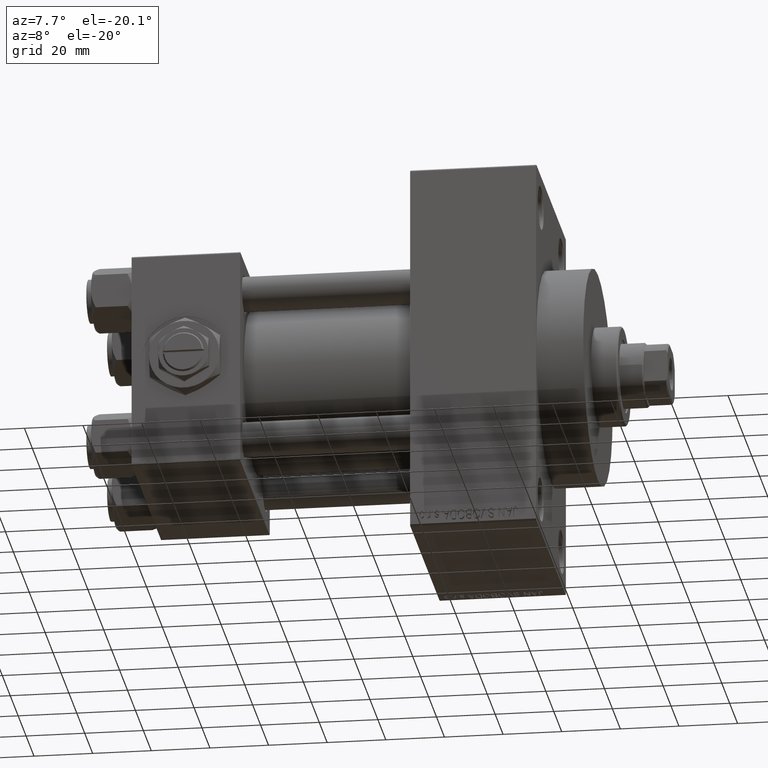
[diagram: clean part render]
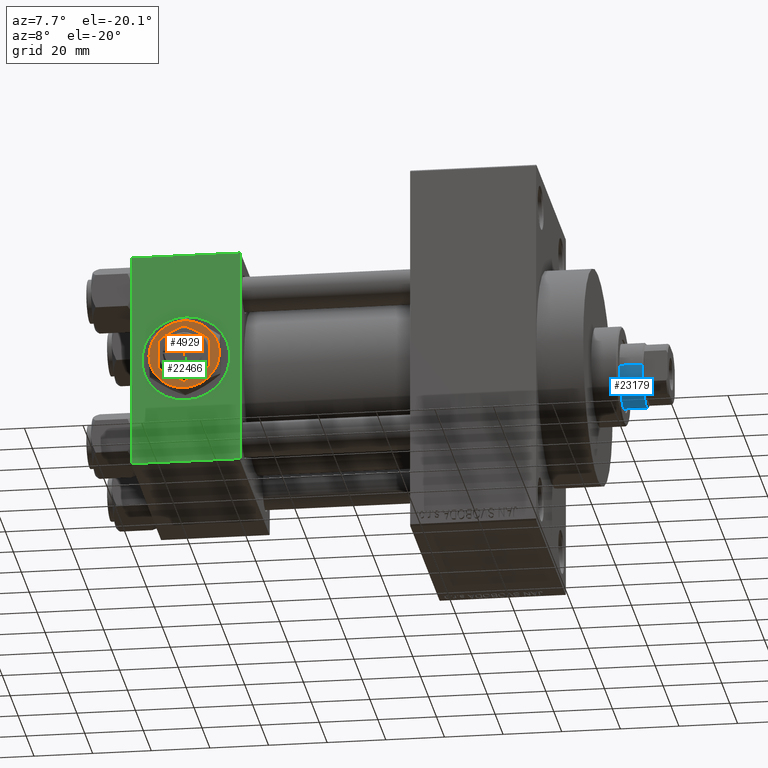
[diagram: same view with three faces highlighted in distinct colors, each labeled with its STEP entity id]
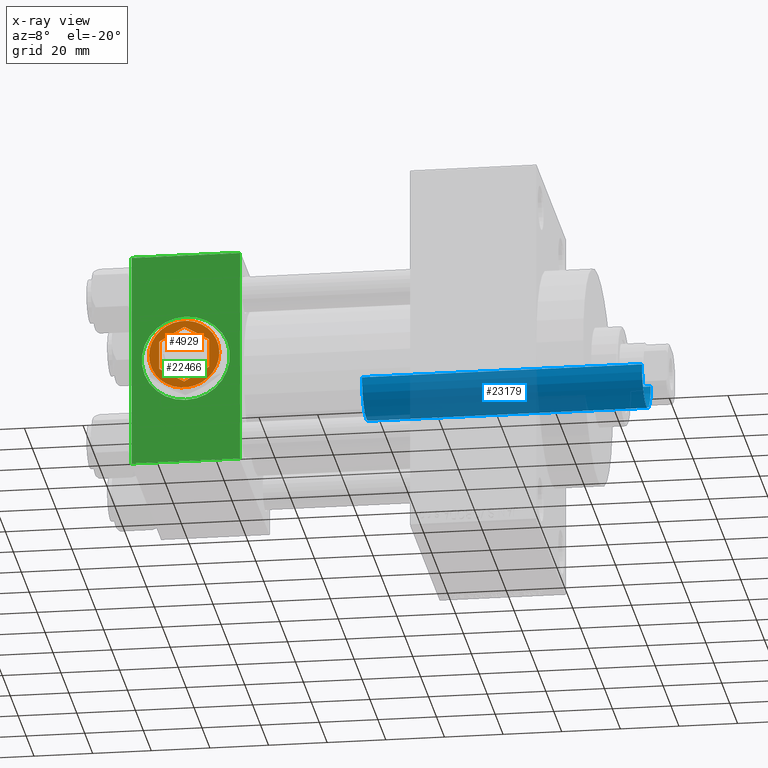
[diagram: x-ray of the same camera — body ghosted, the three highlighted faces saturated]
A machine part, auxiliary view with three faces highlighted in distinct colors.
The next image is the same camera in x-ray (body ghosted, the three faces saturated) — at least one of them is partly hidden behind the body in this view.
Their STEP definitions:

[orange] entity #4929 — the highlighted planar face has unit normal (-0, -1, 0).
#592 = CIRCLE ( 'NONE', #12340, 12.00000000000000178 ) ;
#650 = CARTESIAN_POINT ( 'NONE',  ( -2.644623992720612091E-15, -9.814954576223637872, 4.299999999999999822 ) ) ;
#1041 = LINE ( 'NONE', #1529, #28893 ) ;
#1529 = CARTESIAN_POINT ( 'NONE',  ( -8.500000000000000000, 4.907477288111818048, 4.299999999999999822 ) ) ;
#2143 = VERTEX_POINT ( 'NONE', #7909 ) ;
#2283 = EDGE_CURVE ( 'NONE', #15199, #18708, #44533, .T. ) ;
#2965 = CARTESIAN_POINT ( 'NONE',  ( 5.999999999999998224, -10.39230484541326760, 4.299999999999999822 ) ) ;
#3064 = EDGE_CURVE ( 'NONE', #14165, #29876, #19781, .T. ) ;
#3710 = VERTEX_POINT ( 'NONE', #28236 ) ;
#4540 = CARTESIAN_POINT ( 'NONE',  ( -8.500000000000000000, 4.907477288111818048, 4.299999999999999822 ) ) ;
#4929 = ADVANCED_FACE ( 'NONE', ( #11429, #43993 ), #47930, .T. ) ;
#5488 = CARTESIAN_POINT ( 'NONE',  ( -2.644623992720612091E-15, -9.814954576223637872, 4.299999999999999822 ) ) ;
#6131 = DIRECTION ( 'NONE',  ( 0.8660254037844385966, -0.5000000000000001110, 0.000000000000000000 ) ) ;
#6612 = LINE ( 'NONE', #13513, #21864 ) ;
#6850 = ORIENTED_EDGE ( 'NONE', *, *, #15534, .T. ) ;
#6882 = DIRECTION ( 'NONE',  ( -0.8660254037844387076, 0.4999999999999998890, 0.000000000000000000 ) ) ;
#7224 = DIRECTION ( 'NONE',  ( 1.000000000000000000, 0.000000000000000000, 0.000000000000000000 ) ) ;
#7826 = ORIENTED_EDGE ( 'NONE', *, *, #26304, .F. ) ;
#7909 = CARTESIAN_POINT ( 'NONE',  ( -6.000000000000000000, -10.39230484541326582, 4.299999999999999822 ) ) ;
#9521 = ORIENTED_EDGE ( 'NONE', *, *, #2283, .F. ) ;
#11186 = CARTESIAN_POINT ( 'NONE',  ( 0.000000000000000000, 0.000000000000000000, 4.299999999999999822 ) ) ;
#11429 = FACE_OUTER_BOUND ( 'NONE', #26776, .T. ) ;
#11453 = CARTESIAN_POINT ( 'NONE',  ( -8.500000000000000000, -4.907477288111819824, 4.299999999999999822 ) ) ;
#12229 = VERTEX_POINT ( 'NONE', #4540 ) ;
#12340 = AXIS2_PLACEMENT_3D ( 'NONE', #38483, #16583, #20029 ) ;
#12747 = AXIS2_PLACEMENT_3D ( 'NONE', #11186, #26182, #41200 ) ;
#13020 = ORIENTED_EDGE ( 'NONE', *, *, #27523, .F. ) ;
#13513 = CARTESIAN_POINT ( 'NONE',  ( -8.500000000000000000, -4.907477288111819824, 4.299999999999999822 ) ) ;
#13576 = CARTESIAN_POINT ( 'NONE',  ( 11.99999999999999645, 3.004629197474318063E-15, 4.299999999999999822 ) ) ;
#13934 = DIRECTION ( 'NONE',  ( 1.000000000000000000, 0.000000000000000000, 0.000000000000000000 ) ) ;
#14067 = LINE ( 'NONE', #29060, #17433 ) ;
#14138 = ORIENTED_EDGE ( 'NONE', *, *, #36089, .F. ) ;
#14165 = VERTEX_POINT ( 'NONE', #30373 ) ;
#15199 = VERTEX_POINT ( 'NONE', #30437 ) ;
#15534 = EDGE_CURVE ( 'NONE', #2143, #22056, #39701, .T. ) ;
#15749 = EDGE_CURVE ( 'NONE', #3710, #2143, #26348, .T. ) ;
#15953 = VERTEX_POINT ( 'NONE', #13576 ) ;
#16583 = DIRECTION ( 'NONE',  ( 0.000000000000000000, 0.000000000000000000, 1.000000000000000000 ) ) ;
#17075 = DIRECTION ( 'NONE',  ( 0.000000000000000000, 0.000000000000000000, 1.000000000000000000 ) ) ;
#17416 = ORIENTED_EDGE ( 'NONE', *, *, #3064, .T. ) ;
#17433 = VECTOR ( 'NONE', #44093, 1000.000000000000000 ) ;
#17789 = CARTESIAN_POINT ( 'NONE',  ( -6.000000000000001776, 10.39230484541326405, 4.299999999999999822 ) ) ;
#18708 = VERTEX_POINT ( 'NONE', #19151 ) ;
#19151 = CARTESIAN_POINT ( 'NONE',  ( 0.000000000000000000, 9.814954576223637872, 4.299999999999999822 ) ) ;
#19251 = DIRECTION ( 'NONE',  ( 1.000000000000000000, 0.000000000000000000, 0.000000000000000000 ) ) ;
#19288 = DIRECTION ( 'NONE',  ( 0.000000000000000000, 0.000000000000000000, 1.000000000000000000 ) ) ;
#19335 = DIRECTION ( 'NONE',  ( -0.8660254037844385966, -0.5000000000000000000, 0.000000000000000000 ) ) ;
#19517 = DIRECTION ( 'NONE',  ( 0.8660254037844388186, 0.4999999999999997224, 0.000000000000000000 ) ) ;
#19710 = ORIENTED_EDGE ( 'NONE', *, *, #15749, .T. ) ;
#19781 = CIRCLE ( 'NONE', #12747, 12.00000000000000178 ) ;
#19847 = CARTESIAN_POINT ( 'NONE',  ( 8.500000000000000000, -4.907477288111819824, 4.299999999999999822 ) ) ;
#20029 = DIRECTION ( 'NONE',  ( 1.000000000000000000, 0.000000000000000000, 0.000000000000000000 ) ) ;
#20388 = VERTEX_POINT ( 'NONE', #650 ) ;
#20639 = ORIENTED_EDGE ( 'NONE', *, *, #24630, .F. ) ;
#21864 = VECTOR ( 'NONE', #6131, 1000.000000000000114 ) ;
#22056 = VERTEX_POINT ( 'NONE', #2965 ) ;
#22406 = AXIS2_PLACEMENT_3D ( 'NONE', #37217, #48573, #19251 ) ;
#22789 = EDGE_CURVE ( 'NONE', #15953, #14165, #592, .T. ) ;
#24630 = EDGE_CURVE ( 'NONE', #18708, #12229, #30631, .T. ) ;
#25582 = AXIS2_PLACEMENT_3D ( 'NONE', #31339, #17075, #28390 ) ;
#26182 = DIRECTION ( 'NONE',  ( 0.000000000000000000, 0.000000000000000000, 1.000000000000000000 ) ) ;
#26304 = EDGE_CURVE ( 'NONE', #12229, #33706, #1041, .T. ) ;
#26348 = CIRCLE ( 'NONE', #22406, 12.00000000000000178 ) ;
#26593 = ORIENTED_EDGE ( 'NONE', *, *, #42773, .F. ) ;
#26776 = EDGE_LOOP ( 'NONE', ( #41376, #46734, #17416, #33414, #19710, #6850 ) ) ;
#26893 = AXIS2_PLACEMENT_3D ( 'NONE', #32803, #47843, #7224 ) ;
#26913 = LINE ( 'NONE', #5488, #43477 ) ;
#27523 = EDGE_CURVE ( 'NONE', #33706, #20388, #6612, .T. ) ;
#28236 = CARTESIAN_POINT ( 'NONE',  ( -12.00000000000000178, 0.000000000000000000, 4.299999999999999822 ) ) ;
#28390 = DIRECTION ( 'NONE',  ( 1.000000000000000000, 0.000000000000000000, 0.000000000000000000 ) ) ;
#28788 = CARTESIAN_POINT ( 'NONE',  ( 8.499999999999996447, 4.907477288111821601, 4.299999999999999822 ) ) ;
#28893 = VECTOR ( 'NONE', #46073, 1000.000000000000000 ) ;
#28967 = DIRECTION ( 'NONE',  ( 1.000000000000000000, 0.000000000000000000, -0.000000000000000000 ) ) ;
#29060 = CARTESIAN_POINT ( 'NONE',  ( 8.500000000000000000, -4.907477288111819824, 4.299999999999999822 ) ) ;
#29876 = VERTEX_POINT ( 'NONE', #17789 ) ;
#30373 = CARTESIAN_POINT ( 'NONE',  ( 6.000000000000000888, 10.39230484541326582, 4.299999999999999822 ) ) ;
#30437 = CARTESIAN_POINT ( 'NONE',  ( 8.499999999999996447, 4.907477288111821601, 4.299999999999999822 ) ) ;
#30631 = LINE ( 'NONE', #38750, #48693 ) ;
#30834 = AXIS2_PLACEMENT_3D ( 'NONE', #47891, #37029, #13934 ) ;
#31339 = CARTESIAN_POINT ( 'NONE',  ( 0.000000000000000000, 0.000000000000000000, 4.299999999999999822 ) ) ;
#32305 = AXIS2_PLACEMENT_3D ( 'NONE', #34047, #19288, #28967 ) ;
#32803 = CARTESIAN_POINT ( 'NONE',  ( 0.000000000000000000, 0.000000000000000000, 4.299999999999999822 ) ) ;
#33414 = ORIENTED_EDGE ( 'NONE', *, *, #41249, .T. ) ;
#33706 = VERTEX_POINT ( 'NONE', #11453 ) ;
#34047 = CARTESIAN_POINT ( 'NONE',  ( 0.000000000000000000, 0.000000000000000000, 4.299999999999999822 ) ) ;
#34670 = VECTOR ( 'NONE', #6882, 1000.000000000000114 ) ;
#35561 = CIRCLE ( 'NONE', #30834, 12.00000000000000178 ) ;
#35625 = EDGE_LOOP ( 'NONE', ( #20639, #9521, #14138, #26593, #13020, #7826 ) ) ;
#36089 = EDGE_CURVE ( 'NONE', #40907, #15199, #14067, .T. ) ;
#37029 = DIRECTION ( 'NONE',  ( 0.000000000000000000, 0.000000000000000000, 1.000000000000000000 ) ) ;
#37217 = CARTESIAN_POINT ( 'NONE',  ( 0.000000000000000000, 0.000000000000000000, 4.299999999999999822 ) ) ;
#37577 = EDGE_CURVE ( 'NONE', #22056, #15953, #41828, .T. ) ;
#38483 = CARTESIAN_POINT ( 'NONE',  ( 0.000000000000000000, 0.000000000000000000, 4.299999999999999822 ) ) ;
#38750 = CARTESIAN_POINT ( 'NONE',  ( 0.000000000000000000, 9.814954576223637872, 4.299999999999999822 ) ) ;
#39701 = CIRCLE ( 'NONE', #25582, 12.00000000000000178 ) ;
#40907 = VERTEX_POINT ( 'NONE', #19847 ) ;
#41200 = DIRECTION ( 'NONE',  ( 1.000000000000000000, 0.000000000000000000, 0.000000000000000000 ) ) ;
#41249 = EDGE_CURVE ( 'NONE', #29876, #3710, #35561, .T. ) ;
#41376 = ORIENTED_EDGE ( 'NONE', *, *, #37577, .T. ) ;
#41828 = CIRCLE ( 'NONE', #26893, 12.00000000000000178 ) ;
#42773 = EDGE_CURVE ( 'NONE', #20388, #40907, #26913, .T. ) ;
#43477 = VECTOR ( 'NONE', #19517, 1000.000000000000114 ) ;
#43993 = FACE_BOUND ( 'NONE', #35625, .T. ) ;
#44093 = DIRECTION ( 'NONE',  ( -3.534857879381550604E-16, 1.000000000000000000, 0.000000000000000000 ) ) ;
#44533 = LINE ( 'NONE', #28788, #34670 ) ;
#46073 = DIRECTION ( 'NONE',  ( 0.000000000000000000, -1.000000000000000000, 0.000000000000000000 ) ) ;
#46734 = ORIENTED_EDGE ( 'NONE', *, *, #22789, .T. ) ;
#47843 = DIRECTION ( 'NONE',  ( 0.000000000000000000, 0.000000000000000000, 1.000000000000000000 ) ) ;
#47891 = CARTESIAN_POINT ( 'NONE',  ( 0.000000000000000000, 0.000000000000000000, 4.299999999999999822 ) ) ;
#47930 = PLANE ( 'NONE',  #32305 ) ;
#48573 = DIRECTION ( 'NONE',  ( 0.000000000000000000, 0.000000000000000000, 1.000000000000000000 ) ) ;
#48693 = VECTOR ( 'NONE', #19335, 1000.000000000000227 ) ;

[blue] entity #23179 — the highlighted cylindrical surface (edge-blend (fillet) strip) has radius 11 mm, axis along (-1, 0, 0).
#714 = EDGE_CURVE ( 'NONE', #11410, #23056, #36266, .T. ) ;
#3478 = DIRECTION ( 'NONE',  ( -1.000000000000000000, 0.000000000000000000, 0.000000000000000000 ) ) ;
#3498 = EDGE_CURVE ( 'NONE', #10814, #38061, #47074, .T. ) ;
#3520 = DIRECTION ( 'NONE',  ( 0.000000000000000000, 0.000000000000000000, 1.000000000000000000 ) ) ;
#4837 = AXIS2_PLACEMENT_3D ( 'NONE', #31658, #35849, #37903 ) ;
#6454 = CARTESIAN_POINT ( 'NONE',  ( -11.00000000000000000, 0.000000000000000000, 134.0000000000000000 ) ) ;
#7648 = CARTESIAN_POINT ( 'NONE',  ( 0.000000000000000000, 0.000000000000000000, 134.0000000000000000 ) ) ;
#8275 = CARTESIAN_POINT ( 'NONE',  ( -11.00000000000000000, 0.000000000000000000, 38.00000000000000000 ) ) ;
#10814 = VERTEX_POINT ( 'NONE', #28264 ) ;
#11410 = VERTEX_POINT ( 'NONE', #25389 ) ;
#11991 = ORIENTED_EDGE ( 'NONE', *, *, #39362, .T. ) ;
#15856 = VECTOR ( 'NONE', #21453, 1000.000000000000000 ) ;
#18010 = CARTESIAN_POINT ( 'NONE',  ( 0.000000000000000000, 0.000000000000000000, 38.00000000000000000 ) ) ;
#18204 = CIRCLE ( 'NONE', #34705, 11.00000000000000000 ) ;
#21453 = DIRECTION ( 'NONE',  ( -0.000000000000000000, -0.000000000000000000, -1.000000000000000000 ) ) ;
#23056 = VERTEX_POINT ( 'NONE', #39401 ) ;
#23179 = ADVANCED_FACE ( 'NONE', ( #48268 ), #29529, .T. ) ;
#25389 = CARTESIAN_POINT ( 'NONE',  ( 11.00000000000000000, 1.347111479062088405E-15, 133.5000000000000000 ) ) ;
#26649 = EDGE_LOOP ( 'NONE', ( #45311, #39180, #11991, #46635 ) ) ;
#28264 = CARTESIAN_POINT ( 'NONE',  ( -11.00000000000000000, 0.000000000000000000, 133.5000000000000000 ) ) ;
#29529 = CYLINDRICAL_SURFACE ( 'NONE', #36727, 11.00000000000000000 ) ;
#31658 = CARTESIAN_POINT ( 'NONE',  ( 0.000000000000000000, 0.000000000000000000, 133.5000000000000000 ) ) ;
#32969 = DIRECTION ( 'NONE',  ( -0.000000000000000000, -0.000000000000000000, -1.000000000000000000 ) ) ;
#34623 = DIRECTION ( 'NONE',  ( -0.000000000000000000, -0.000000000000000000, -1.000000000000000000 ) ) ;
#34705 = AXIS2_PLACEMENT_3D ( 'NONE', #18010, #3520, #48060 ) ;
#35292 = EDGE_CURVE ( 'NONE', #10814, #11410, #38610, .T. ) ;
#35849 = DIRECTION ( 'NONE',  ( 0.000000000000000000, 0.000000000000000000, -1.000000000000000000 ) ) ;
#36266 = LINE ( 'NONE', #43433, #40131 ) ;
#36727 = AXIS2_PLACEMENT_3D ( 'NONE', #7648, #32969, #3478 ) ;
#37903 = DIRECTION ( 'NONE',  ( 1.000000000000000000, 0.000000000000000000, 0.000000000000000000 ) ) ;
#38061 = VERTEX_POINT ( 'NONE', #8275 ) ;
#38610 = CIRCLE ( 'NONE', #4837, 11.00000000000000000 ) ;
#39180 = ORIENTED_EDGE ( 'NONE', *, *, #714, .T. ) ;
#39362 = EDGE_CURVE ( 'NONE', #23056, #38061, #18204, .T. ) ;
#39401 = CARTESIAN_POINT ( 'NONE',  ( 11.00000000000000000, 1.347111479062088405E-15, 38.00000000000000000 ) ) ;
#40131 = VECTOR ( 'NONE', #34623, 1000.000000000000000 ) ;
#43433 = CARTESIAN_POINT ( 'NONE',  ( 11.00000000000000000, 1.347111479062088405E-15, 134.0000000000000000 ) ) ;
#45311 = ORIENTED_EDGE ( 'NONE', *, *, #35292, .T. ) ;
#46635 = ORIENTED_EDGE ( 'NONE', *, *, #3498, .F. ) ;
#47074 = LINE ( 'NONE', #6454, #15856 ) ;
#48060 = DIRECTION ( 'NONE',  ( 1.000000000000000000, 0.000000000000000000, 0.000000000000000000 ) ) ;
#48268 = FACE_OUTER_BOUND ( 'NONE', #26649, .T. ) ;

[green] entity #22466 — the highlighted planar face has unit normal (0, 1, 0).
#144 = CARTESIAN_POINT ( 'NONE',  ( 37.00000000000000000, -37.50000000000000000, -37.00000000000003553 ) ) ;
#549 = DIRECTION ( 'NONE',  ( 0.000000000000000000, 9.251858538542971581E-17, -1.000000000000000000 ) ) ;
#2172 = EDGE_CURVE ( 'NONE', #22080, #14496, #16258, .T. ) ;
#2368 = CARTESIAN_POINT ( 'NONE',  ( 0.000000000000000000, -37.50000000000000711, 37.49999999999999289 ) ) ;
#2875 = VERTEX_POINT ( 'NONE', #39019 ) ;
#5538 = EDGE_CURVE ( 'NONE', #2875, #14496, #6891, .T. ) ;
#6891 = LINE ( 'NONE', #44301, #47279 ) ;
#6971 = EDGE_CURVE ( 'NONE', #25371, #2875, #10941, .T. ) ;
#7094 = DIRECTION ( 'NONE',  ( 0.000000000000000000, 0.000000000000000000, -1.000000000000000000 ) ) ;
#7736 = CARTESIAN_POINT ( 'NONE',  ( 37.00000000000000000, -37.50000000000000711, 37.49999999999999289 ) ) ;
#7975 = VECTOR ( 'NONE', #549, 1000.000000000000000 ) ;
#7980 = DIRECTION ( 'NONE',  ( -0.000000000000000000, 1.000000000000000000, 9.251858538542971581E-17 ) ) ;
#8492 = CARTESIAN_POINT ( 'NONE',  ( 18.50000000000000000, -37.50000000000000711, -15.00000000000000533 ) ) ;
#8606 = CARTESIAN_POINT ( 'NONE',  ( 18.50000000000000000, -37.50000000000000711, -3.469446951953614978E-15 ) ) ;
#9266 = ORIENTED_EDGE ( 'NONE', *, *, #6971, .T. ) ;
#10385 = VECTOR ( 'NONE', #10458, 1000.000000000000000 ) ;
#10458 = DIRECTION ( 'NONE',  ( 0.000000000000000000, 9.251858538542971581E-17, -1.000000000000000000 ) ) ;
#10582 = DIRECTION ( 'NONE',  ( 1.000000000000000000, 0.000000000000000000, 0.000000000000000000 ) ) ;
#10709 = EDGE_CURVE ( 'NONE', #15035, #33850, #40377, .T. ) ;
#10941 = LINE ( 'NONE', #2368, #10385 ) ;
#11417 = FACE_OUTER_BOUND ( 'NONE', #46559, .T. ) ;
#11525 = DIRECTION ( 'NONE',  ( 0.000000000000000000, -1.000000000000000000, -8.673617379884036705E-17 ) ) ;
#14496 = VERTEX_POINT ( 'NONE', #144 ) ;
#14502 = CARTESIAN_POINT ( 'NONE',  ( 37.00000000000000000, -37.50000000000000711, 36.99999999999999289 ) ) ;
#14861 = FACE_BOUND ( 'NONE', #33762, .T. ) ;
#15035 = VERTEX_POINT ( 'NONE', #33150 ) ;
#15143 = ORIENTED_EDGE ( 'NONE', *, *, #10709, .F. ) ;
#15989 = AXIS2_PLACEMENT_3D ( 'NONE', #8606, #28024, #19430 ) ;
#16258 = LINE ( 'NONE', #19215, #7975 ) ;
#17784 = ORIENTED_EDGE ( 'NONE', *, *, #19926, .F. ) ;
#18508 = CIRCLE ( 'NONE', #38150, 15.00000000000000178 ) ;
#19215 = CARTESIAN_POINT ( 'NONE',  ( 37.00000000000000000, -37.50000000000000711, 37.49999999999999289 ) ) ;
#19301 = LINE ( 'NONE', #30601, #28957 ) ;
#19430 = DIRECTION ( 'NONE',  ( 0.000000000000000000, 0.000000000000000000, -1.000000000000000000 ) ) ;
#19926 = EDGE_CURVE ( 'NONE', #33850, #15035, #18508, .T. ) ;
#22080 = VERTEX_POINT ( 'NONE', #14502 ) ;
#22466 = ADVANCED_FACE ( 'NONE', ( #14861, #11417 ), #29856, .F. ) ;
#24687 = ORIENTED_EDGE ( 'NONE', *, *, #5538, .T. ) ;
#25371 = VERTEX_POINT ( 'NONE', #35398 ) ;
#26272 = CARTESIAN_POINT ( 'NONE',  ( 18.50000000000000000, -37.50000000000000711, -3.469446951953614978E-15 ) ) ;
#28024 = DIRECTION ( 'NONE',  ( 0.000000000000000000, -1.000000000000000000, -8.673617379884036705E-17 ) ) ;
#28908 = EDGE_CURVE ( 'NONE', #22080, #25371, #19301, .T. ) ;
#28957 = VECTOR ( 'NONE', #45402, 1000.000000000000000 ) ;
#29856 = PLANE ( 'NONE',  #40618 ) ;
#30601 = CARTESIAN_POINT ( 'NONE',  ( 37.00000000000000000, -37.50000000000000711, 36.99999999999999289 ) ) ;
#33150 = CARTESIAN_POINT ( 'NONE',  ( 18.50000000000000355, -37.50000000000000711, 14.99999999999999822 ) ) ;
#33762 = EDGE_LOOP ( 'NONE', ( #17784, #15143 ) ) ;
#33850 = VERTEX_POINT ( 'NONE', #8492 ) ;
#35398 = CARTESIAN_POINT ( 'NONE',  ( 0.000000000000000000, -37.50000000000000711, 36.99999999999999289 ) ) ;
#38150 = AXIS2_PLACEMENT_3D ( 'NONE', #26272, #11525, #7094 ) ;
#38208 = ORIENTED_EDGE ( 'NONE', *, *, #28908, .T. ) ;
#39019 = CARTESIAN_POINT ( 'NONE',  ( 0.000000000000000000, -37.50000000000000000, -37.00000000000003553 ) ) ;
#40377 = CIRCLE ( 'NONE', #15989, 15.00000000000000178 ) ;
#40618 = AXIS2_PLACEMENT_3D ( 'NONE', #7736, #7980, #45387 ) ;
#40967 = ORIENTED_EDGE ( 'NONE', *, *, #2172, .F. ) ;
#44301 = CARTESIAN_POINT ( 'NONE',  ( 37.00000000000000000, -37.50000000000000000, -37.00000000000003553 ) ) ;
#45387 = DIRECTION ( 'NONE',  ( 0.000000000000000000, -9.251858538542971581E-17, 1.000000000000000000 ) ) ;
#45402 = DIRECTION ( 'NONE',  ( -1.000000000000000000, 0.000000000000000000, 0.000000000000000000 ) ) ;
#46559 = EDGE_LOOP ( 'NONE', ( #9266, #24687, #40967, #38208 ) ) ;
#47279 = VECTOR ( 'NONE', #10582, 1000.000000000000000 ) ;